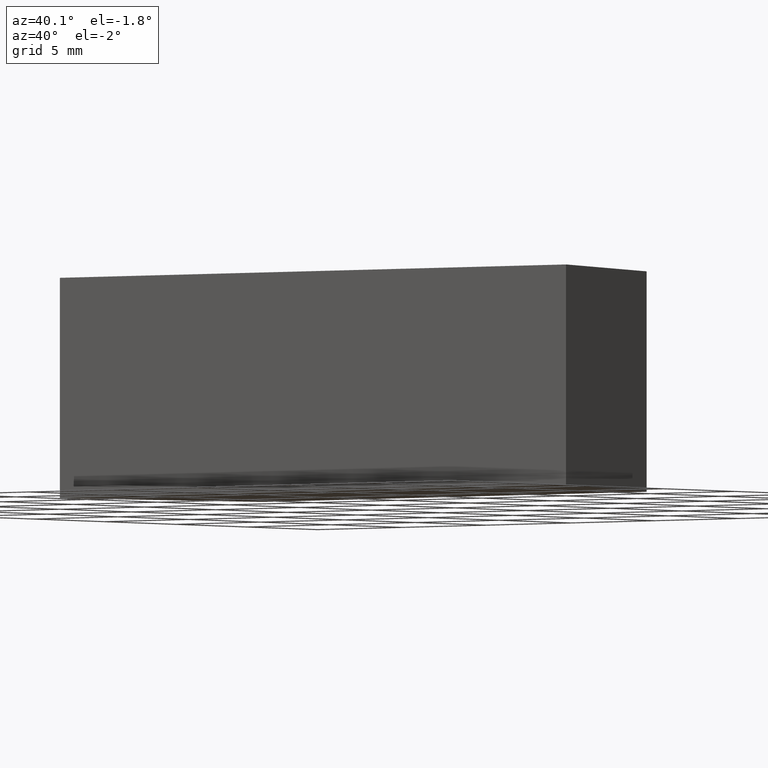
[diagram: clean part render]
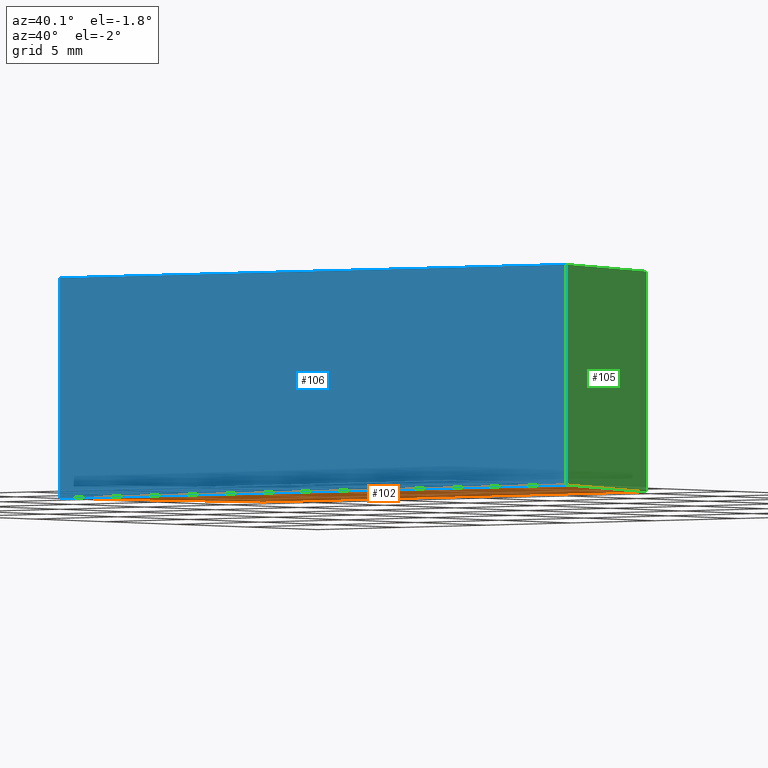
[diagram: same view with three faces highlighted in distinct colors, each labeled with its STEP entity id]
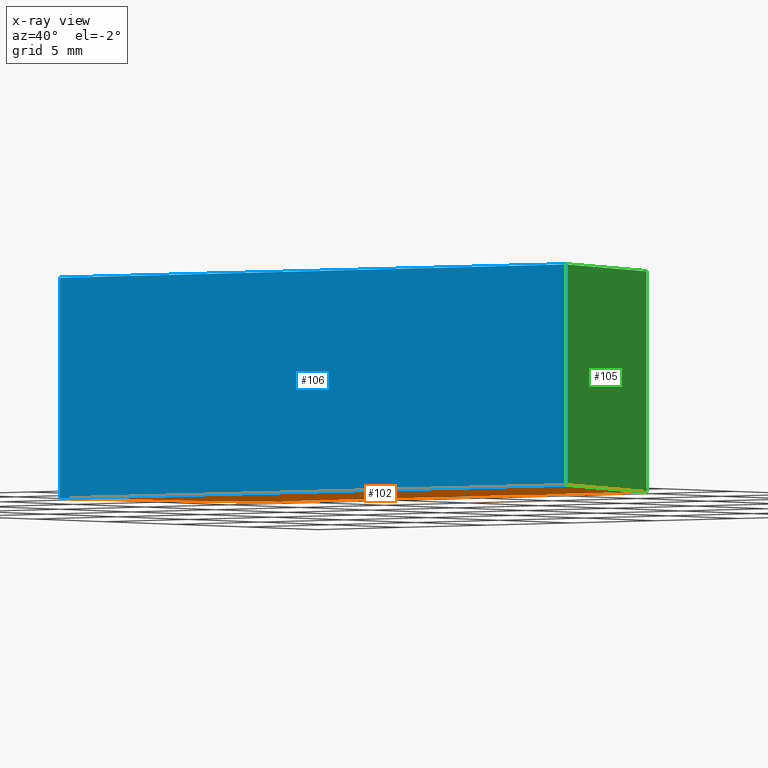
[diagram: x-ray of the same camera — body ghosted, the three highlighted faces saturated]
A machine part, auxiliary view with three faces highlighted in distinct colors.
The next image is the same camera in x-ray (body ghosted, the three faces saturated) — at least one of them is partly hidden behind the body in this view.
Their STEP definitions:

[orange] entity #102 — the highlighted planar face has unit normal (0, 0, 1).
#16=FACE_OUTER_BOUND('',#22,.T.);
#22=EDGE_LOOP('',(#72,#73,#74,#75));
#28=LINE('',#167,#40);
#29=LINE('',#169,#41);
#30=LINE('',#171,#42);
#31=LINE('',#172,#43);
#40=VECTOR('',#141,10.);
#41=VECTOR('',#142,10.);
#42=VECTOR('',#143,10.);
#43=VECTOR('',#144,10.);
#52=VERTEX_POINT('',#165);
#53=VERTEX_POINT('',#166);
#54=VERTEX_POINT('',#168);
#55=VERTEX_POINT('',#170);
#60=EDGE_CURVE('',#52,#53,#28,.T.);
#61=EDGE_CURVE('',#54,#52,#29,.T.);
#62=EDGE_CURVE('',#55,#54,#30,.T.);
#63=EDGE_CURVE('',#53,#55,#31,.T.);
#72=ORIENTED_EDGE('',*,*,#60,.F.);
#73=ORIENTED_EDGE('',*,*,#61,.F.);
#74=ORIENTED_EDGE('',*,*,#62,.F.);
#75=ORIENTED_EDGE('',*,*,#63,.F.);
#96=PLANE('',#131);
#102=ADVANCED_FACE('',(#16),#96,.F.);
#131=AXIS2_PLACEMENT_3D('',#164,#139,#140);
#139=DIRECTION('center_axis',(0.,0.,1.));
#140=DIRECTION('ref_axis',(1.,0.,0.));
#141=DIRECTION('',(-0.34204484166827,0.939683630956785,0.));
#142=DIRECTION('',(1.,0.,0.));
#143=DIRECTION('',(-0.34204484166827,-0.939683630956785,0.));
#144=DIRECTION('',(-1.,0.,0.));
#164=CARTESIAN_POINT('Origin',(5.55111512312578E-16,-0.491866905940554,
-5.));
#165=CARTESIAN_POINT('',(15.,-5.,-5.));
#166=CARTESIAN_POINT('',(11.36,5.,-5.));
#167=CARTESIAN_POINT('',(11.36,5.,-5.));
#168=CARTESIAN_POINT('',(-15.,-5.,-5.));
#169=CARTESIAN_POINT('',(15.,-5.,-5.));
#170=CARTESIAN_POINT('',(-11.36,5.,-5.));
#171=CARTESIAN_POINT('',(-15.,-5.,-5.));
#172=CARTESIAN_POINT('',(-11.36,5.,-5.));

[blue] entity #106 — the highlighted planar face has unit normal (0, -1, 0).
#20=FACE_OUTER_BOUND('',#26,.T.);
#26=EDGE_LOOP('',(#88,#89,#90,#91));
#29=LINE('',#169,#41);
#34=LINE('',#178,#46);
#38=LINE('',#186,#50);
#39=LINE('',#188,#51);
#41=VECTOR('',#142,10.);
#46=VECTOR('',#149,10.);
#50=VECTOR('',#157,10.);
#51=VECTOR('',#160,10.);
#52=VERTEX_POINT('',#165);
#54=VERTEX_POINT('',#168);
#56=VERTEX_POINT('',#174);
#59=VERTEX_POINT('',#184);
#61=EDGE_CURVE('',#54,#52,#29,.T.);
#66=EDGE_CURVE('',#56,#54,#34,.T.);
#70=EDGE_CURVE('',#52,#59,#38,.T.);
#71=EDGE_CURVE('',#59,#56,#39,.T.);
#88=ORIENTED_EDGE('',*,*,#71,.T.);
#89=ORIENTED_EDGE('',*,*,#66,.T.);
#90=ORIENTED_EDGE('',*,*,#61,.T.);
#91=ORIENTED_EDGE('',*,*,#70,.T.);
#100=PLANE('',#135);
#106=ADVANCED_FACE('',(#20),#100,.T.);
#135=AXIS2_PLACEMENT_3D('',#187,#158,#159);
#142=DIRECTION('',(1.,0.,0.));
#149=DIRECTION('',(0.,0.,-1.));
#157=DIRECTION('',(0.,0.,1.));
#158=DIRECTION('center_axis',(0.,-1.,0.));
#159=DIRECTION('ref_axis',(0.,0.,-1.));
#160=DIRECTION('',(-1.,0.,0.));
#165=CARTESIAN_POINT('',(15.,-5.,-5.));
#168=CARTESIAN_POINT('',(-15.,-5.,-5.));
#169=CARTESIAN_POINT('',(15.,-5.,-5.));
#174=CARTESIAN_POINT('',(-15.,-5.,5.));
#178=CARTESIAN_POINT('',(-15.,-5.,0.));
#184=CARTESIAN_POINT('',(15.,-5.,5.));
#186=CARTESIAN_POINT('',(15.,-5.,0.));
#187=CARTESIAN_POINT('Origin',(15.,-5.,0.));
#188=CARTESIAN_POINT('',(15.,-5.,5.));

[green] entity #105 — the highlighted planar face has unit normal (0.9397, 0.342, 0).
#19=FACE_OUTER_BOUND('',#25,.T.);
#25=EDGE_LOOP('',(#84,#85,#86,#87));
#28=LINE('',#167,#40);
#36=LINE('',#182,#48);
#37=LINE('',#185,#49);
#38=LINE('',#186,#50);
#40=VECTOR('',#141,10.);
#48=VECTOR('',#153,10.);
#49=VECTOR('',#156,10.);
#50=VECTOR('',#157,10.);
#52=VERTEX_POINT('',#165);
#53=VERTEX_POINT('',#166);
#58=VERTEX_POINT('',#180);
#59=VERTEX_POINT('',#184);
#60=EDGE_CURVE('',#52,#53,#28,.T.);
#68=EDGE_CURVE('',#58,#53,#36,.T.);
#69=EDGE_CURVE('',#58,#59,#37,.T.);
#70=EDGE_CURVE('',#52,#59,#38,.T.);
#84=ORIENTED_EDGE('',*,*,#69,.T.);
#85=ORIENTED_EDGE('',*,*,#70,.F.);
#86=ORIENTED_EDGE('',*,*,#60,.T.);
#87=ORIENTED_EDGE('',*,*,#68,.F.);
#99=PLANE('',#134);
#105=ADVANCED_FACE('',(#19),#99,.T.);
#134=AXIS2_PLACEMENT_3D('',#183,#154,#155);
#141=DIRECTION('',(-0.34204484166827,0.939683630956785,0.));
#153=DIRECTION('',(0.,0.,-1.));
#154=DIRECTION('center_axis',(0.939683630956786,0.34204484166827,0.));
#155=DIRECTION('ref_axis',(0.,0.,-1.));
#156=DIRECTION('',(0.34204484166827,-0.939683630956785,0.));
#157=DIRECTION('',(0.,0.,1.));
#165=CARTESIAN_POINT('',(15.,-5.,-5.));
#166=CARTESIAN_POINT('',(11.36,5.,-5.));
#167=CARTESIAN_POINT('',(11.36,5.,-5.));
#180=CARTESIAN_POINT('',(11.36,5.,5.));
#182=CARTESIAN_POINT('',(11.36,5.,0.));
#183=CARTESIAN_POINT('Origin',(11.36,5.,0.));
#184=CARTESIAN_POINT('',(15.,-5.,5.));
#185=CARTESIAN_POINT('',(11.36,5.,5.));
#186=CARTESIAN_POINT('',(15.,-5.,0.));